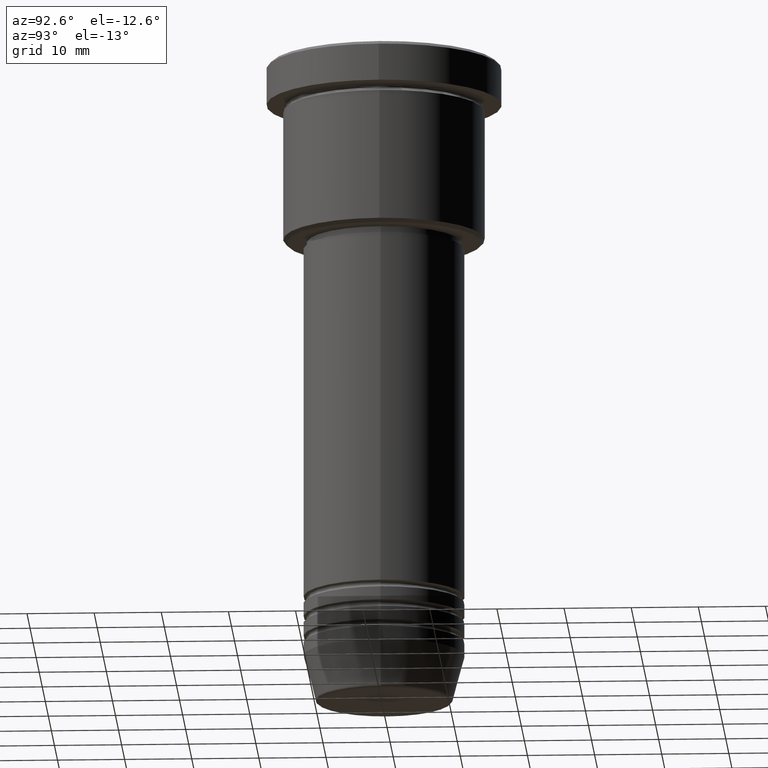
[diagram: clean part render]
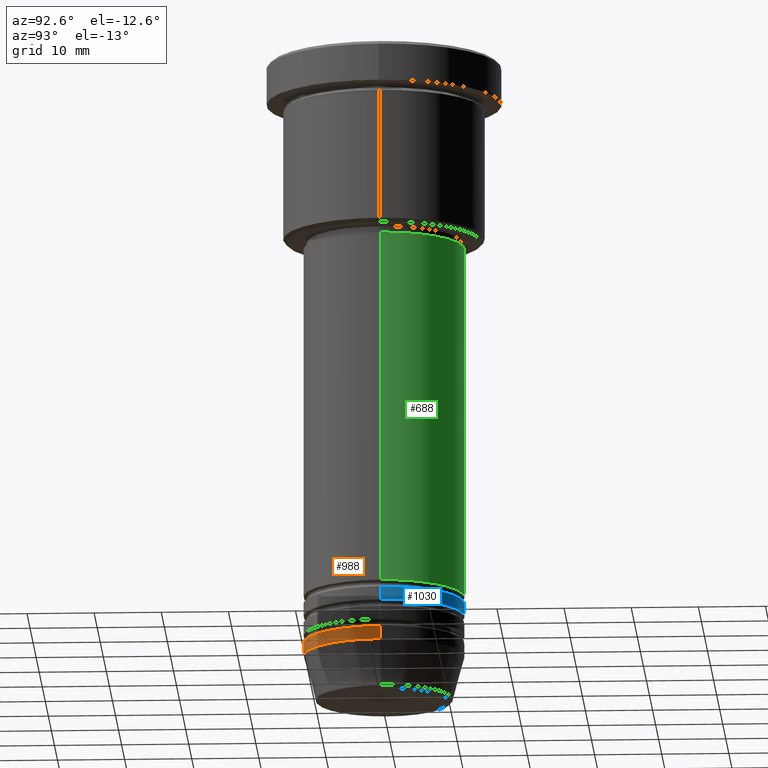
[diagram: same view with three faces highlighted in distinct colors, each labeled with its STEP entity id]
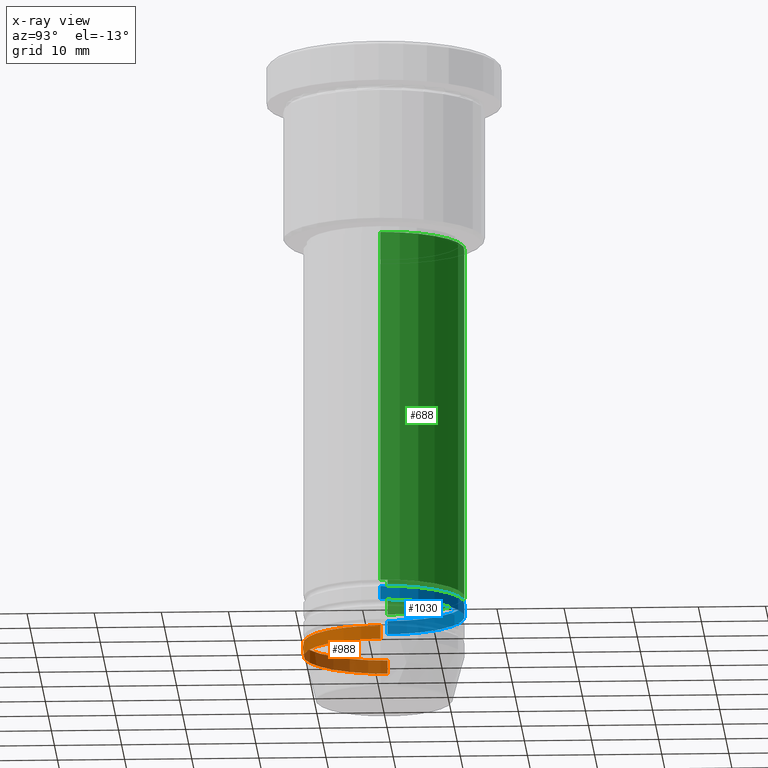
[diagram: x-ray of the same camera — body ghosted, the three highlighted faces saturated]
A machine part, auxiliary view with three faces highlighted in distinct colors.
The next image is the same camera in x-ray (body ghosted, the three faces saturated) — at least one of them is partly hidden behind the body in this view.
Their STEP definitions:

[orange] entity #988 — the highlighted cylindrical surface (partial cylindrical patch) has radius 12 mm, axis along (-0, -0, 1).
#2 = LINE ( 'NONE', #1011, #44 ) ;
#19 = ORIENTED_EDGE ( 'NONE', *, *, #136, .F. ) ;
#44 = VECTOR ( 'NONE', #461, 1000.000000000000000 ) ;
#94 = DIRECTION ( 'NONE',  ( -0.000000000000000000, -0.000000000000000000, 1.000000000000000000 ) ) ;
#129 = VERTEX_POINT ( 'NONE', #374 ) ;
#136 = EDGE_CURVE ( 'NONE', #129, #1086, #230, .T. ) ;
#206 = CARTESIAN_POINT ( 'NONE',  ( 12.00000000000000000, 0.000000000000000000, -88.00000000000000000 ) ) ;
#211 = VECTOR ( 'NONE', #94, 1000.000000000000000 ) ;
#230 = CIRCLE ( 'NONE', #1057, 12.00000000000000000 ) ;
#253 = AXIS2_PLACEMENT_3D ( 'NONE', #490, #917, #829 ) ;
#277 = CARTESIAN_POINT ( 'NONE',  ( 0.000000000000000000, 0.000000000000000000, -88.00000000000000000 ) ) ;
#358 = ORIENTED_EDGE ( 'NONE', *, *, #1092, .F. ) ;
#367 = CIRCLE ( 'NONE', #253, 12.00000000000000000 ) ;
#374 = CARTESIAN_POINT ( 'NONE',  ( -12.00000000000000000, 1.469576158976823947E-15, -88.00000000000000000 ) ) ;
#414 = CARTESIAN_POINT ( 'NONE',  ( -12.00000000000000000, 1.469576158976823947E-15, -90.00000000000000000 ) ) ;
#443 = EDGE_CURVE ( 'NONE', #533, #1086, #539, .T. ) ;
#461 = DIRECTION ( 'NONE',  ( -0.000000000000000000, -0.000000000000000000, 1.000000000000000000 ) ) ;
#465 = ORIENTED_EDGE ( 'NONE', *, *, #546, .T. ) ;
#490 = CARTESIAN_POINT ( 'NONE',  ( 0.000000000000000000, 0.000000000000000000, -90.00000000000000000 ) ) ;
#492 = DIRECTION ( 'NONE',  ( 1.000000000000000000, 0.000000000000000000, 0.000000000000000000 ) ) ;
#533 = VERTEX_POINT ( 'NONE', #577 ) ;
#539 = LINE ( 'NONE', #731, #211 ) ;
#546 = EDGE_CURVE ( 'NONE', #1164, #533, #367, .T. ) ;
#577 = CARTESIAN_POINT ( 'NONE',  ( 12.00000000000000000, 0.000000000000000000, -90.00000000000000000 ) ) ;
#731 = CARTESIAN_POINT ( 'NONE',  ( 12.00000000000000000, 0.000000000000000000, 0.000000000000000000 ) ) ;
#738 = CARTESIAN_POINT ( 'NONE',  ( 0.000000000000000000, 0.000000000000000000, 0.000000000000000000 ) ) ;
#758 = ORIENTED_EDGE ( 'NONE', *, *, #443, .T. ) ;
#759 = DIRECTION ( 'NONE',  ( -0.000000000000000000, -0.000000000000000000, 1.000000000000000000 ) ) ;
#829 = DIRECTION ( 'NONE',  ( 1.000000000000000000, 0.000000000000000000, 0.000000000000000000 ) ) ;
#836 = CYLINDRICAL_SURFACE ( 'NONE', #1041, 12.00000000000000000 ) ;
#917 = DIRECTION ( 'NONE',  ( -0.000000000000000000, -0.000000000000000000, 1.000000000000000000 ) ) ;
#988 = ADVANCED_FACE ( 'NONE', ( #1061 ), #836, .T. ) ;
#1002 = DIRECTION ( 'NONE',  ( -0.000000000000000000, -0.000000000000000000, 1.000000000000000000 ) ) ;
#1011 = CARTESIAN_POINT ( 'NONE',  ( -12.00000000000000000, 1.469576158976823947E-15, 0.000000000000000000 ) ) ;
#1041 = AXIS2_PLACEMENT_3D ( 'NONE', #738, #1002, #1094 ) ;
#1057 = AXIS2_PLACEMENT_3D ( 'NONE', #277, #759, #492 ) ;
#1061 = FACE_OUTER_BOUND ( 'NONE', #1178, .T. ) ;
#1086 = VERTEX_POINT ( 'NONE', #206 ) ;
#1092 = EDGE_CURVE ( 'NONE', #1164, #129, #2, .T. ) ;
#1094 = DIRECTION ( 'NONE',  ( 1.000000000000000000, 0.000000000000000000, 0.000000000000000000 ) ) ;
#1164 = VERTEX_POINT ( 'NONE', #414 ) ;
#1178 = EDGE_LOOP ( 'NONE', ( #358, #465, #758, #19 ) ) ;

[blue] entity #1030 — the highlighted cylindrical surface (partial cylindrical patch) has radius 12 mm, axis along (-0, -0, 1).
#49 = CIRCLE ( 'NONE', #426, 12.00000000000000000 ) ;
#73 = VERTEX_POINT ( 'NONE', #970 ) ;
#102 = FACE_OUTER_BOUND ( 'NONE', #1060, .T. ) ;
#169 = CARTESIAN_POINT ( 'NONE',  ( 0.000000000000000000, 0.000000000000000000, -81.99999999999997158 ) ) ;
#185 = DIRECTION ( 'NONE',  ( -0.000000000000000000, -0.000000000000000000, 1.000000000000000000 ) ) ;
#199 = VERTEX_POINT ( 'NONE', #571 ) ;
#205 = ORIENTED_EDGE ( 'NONE', *, *, #408, .T. ) ;
#223 = VERTEX_POINT ( 'NONE', #928 ) ;
#264 = DIRECTION ( 'NONE',  ( 1.000000000000000000, 0.000000000000000000, 0.000000000000000000 ) ) ;
#287 = VECTOR ( 'NONE', #991, 1000.000000000000000 ) ;
#366 = ORIENTED_EDGE ( 'NONE', *, *, #429, .F. ) ;
#389 = CARTESIAN_POINT ( 'NONE',  ( 0.000000000000000000, 0.000000000000000000, 0.000000000000000000 ) ) ;
#408 = EDGE_CURVE ( 'NONE', #223, #73, #924, .T. ) ;
#426 = AXIS2_PLACEMENT_3D ( 'NONE', #169, #1089, #264 ) ;
#429 = EDGE_CURVE ( 'NONE', #223, #881, #636, .T. ) ;
#468 = DIRECTION ( 'NONE',  ( -0.000000000000000000, -0.000000000000000000, 1.000000000000000000 ) ) ;
#479 = AXIS2_PLACEMENT_3D ( 'NONE', #389, #468, #1182 ) ;
#497 = LINE ( 'NONE', #1031, #661 ) ;
#516 = AXIS2_PLACEMENT_3D ( 'NONE', #639, #185, #1183 ) ;
#571 = CARTESIAN_POINT ( 'NONE',  ( -12.00000000000000000, 1.469576158976823947E-15, -81.99999999999997158 ) ) ;
#624 = ORIENTED_EDGE ( 'NONE', *, *, #934, .F. ) ;
#636 = LINE ( 'NONE', #911, #287 ) ;
#639 = CARTESIAN_POINT ( 'NONE',  ( 0.000000000000000000, 0.000000000000000000, -83.99999999999997158 ) ) ;
#661 = VECTOR ( 'NONE', #672, 1000.000000000000000 ) ;
#672 = DIRECTION ( 'NONE',  ( -0.000000000000000000, -0.000000000000000000, 1.000000000000000000 ) ) ;
#741 = CYLINDRICAL_SURFACE ( 'NONE', #479, 12.00000000000000000 ) ;
#881 = VERTEX_POINT ( 'NONE', #982 ) ;
#911 = CARTESIAN_POINT ( 'NONE',  ( 12.00000000000000000, 0.000000000000000000, 0.000000000000000000 ) ) ;
#924 = CIRCLE ( 'NONE', #516, 12.00000000000000000 ) ;
#928 = CARTESIAN_POINT ( 'NONE',  ( 12.00000000000000000, 0.000000000000000000, -83.99999999999997158 ) ) ;
#934 = EDGE_CURVE ( 'NONE', #881, #199, #49, .T. ) ;
#970 = CARTESIAN_POINT ( 'NONE',  ( -12.00000000000000000, 1.469576158976823947E-15, -83.99999999999997158 ) ) ;
#982 = CARTESIAN_POINT ( 'NONE',  ( 12.00000000000000000, 0.000000000000000000, -81.99999999999997158 ) ) ;
#991 = DIRECTION ( 'NONE',  ( -0.000000000000000000, -0.000000000000000000, 1.000000000000000000 ) ) ;
#1030 = ADVANCED_FACE ( 'NONE', ( #102 ), #741, .T. ) ;
#1031 = CARTESIAN_POINT ( 'NONE',  ( -12.00000000000000000, 1.469576158976823947E-15, 0.000000000000000000 ) ) ;
#1060 = EDGE_LOOP ( 'NONE', ( #205, #1155, #624, #366 ) ) ;
#1089 = DIRECTION ( 'NONE',  ( -0.000000000000000000, -0.000000000000000000, 1.000000000000000000 ) ) ;
#1122 = EDGE_CURVE ( 'NONE', #73, #199, #497, .T. ) ;
#1155 = ORIENTED_EDGE ( 'NONE', *, *, #1122, .T. ) ;
#1182 = DIRECTION ( 'NONE',  ( 1.000000000000000000, 0.000000000000000000, 0.000000000000000000 ) ) ;
#1183 = DIRECTION ( 'NONE',  ( 1.000000000000000000, 0.000000000000000000, 0.000000000000000000 ) ) ;

[green] entity #688 — the highlighted cylindrical surface (partial cylindrical patch) has radius 12 mm, axis along (-0, -0, 1).
#4 = VERTEX_POINT ( 'NONE', #200 ) ;
#16 = DIRECTION ( 'NONE',  ( 1.000000000000000000, 0.000000000000000000, 0.000000000000000000 ) ) ;
#32 = EDGE_LOOP ( 'NONE', ( #364, #806, #437, #632 ) ) ;
#76 = CARTESIAN_POINT ( 'NONE',  ( 12.00000000000000000, 0.000000000000000000, 0.000000000000000000 ) ) ;
#77 = VERTEX_POINT ( 'NONE', #597 ) ;
#103 = EDGE_CURVE ( 'NONE', #77, #1153, #1036, .T. ) ;
#118 = CARTESIAN_POINT ( 'NONE',  ( -12.00000000000000000, 1.469576158976823947E-15, -80.99999999999997158 ) ) ;
#151 = CYLINDRICAL_SURFACE ( 'NONE', #477, 12.00000000000000000 ) ;
#176 = VECTOR ( 'NONE', #525, 1000.000000000000000 ) ;
#195 = AXIS2_PLACEMENT_3D ( 'NONE', #840, #666, #387 ) ;
#200 = CARTESIAN_POINT ( 'NONE',  ( -12.00000000000000000, 1.469576158976823947E-15, -27.99999999999996803 ) ) ;
#325 = DIRECTION ( 'NONE',  ( 1.000000000000000000, 0.000000000000000000, 0.000000000000000000 ) ) ;
#364 = ORIENTED_EDGE ( 'NONE', *, *, #103, .T. ) ;
#387 = DIRECTION ( 'NONE',  ( 1.000000000000000000, 0.000000000000000000, 0.000000000000000000 ) ) ;
#412 = CARTESIAN_POINT ( 'NONE',  ( 0.000000000000000000, 0.000000000000000000, 0.000000000000000000 ) ) ;
#435 = DIRECTION ( 'NONE',  ( -0.000000000000000000, -0.000000000000000000, 1.000000000000000000 ) ) ;
#437 = ORIENTED_EDGE ( 'NONE', *, *, #1014, .F. ) ;
#477 = AXIS2_PLACEMENT_3D ( 'NONE', #412, #693, #325 ) ;
#525 = DIRECTION ( 'NONE',  ( -0.000000000000000000, -0.000000000000000000, 1.000000000000000000 ) ) ;
#532 = AXIS2_PLACEMENT_3D ( 'NONE', #838, #1088, #16 ) ;
#574 = CIRCLE ( 'NONE', #195, 12.00000000000000000 ) ;
#588 = FACE_OUTER_BOUND ( 'NONE', #32, .T. ) ;
#597 = CARTESIAN_POINT ( 'NONE',  ( 12.00000000000000000, 0.000000000000000000, -80.99999999999997158 ) ) ;
#625 = LINE ( 'NONE', #76, #649 ) ;
#632 = ORIENTED_EDGE ( 'NONE', *, *, #972, .F. ) ;
#649 = VECTOR ( 'NONE', #435, 1000.000000000000000 ) ;
#666 = DIRECTION ( 'NONE',  ( -0.000000000000000000, -0.000000000000000000, 1.000000000000000000 ) ) ;
#679 = VERTEX_POINT ( 'NONE', #837 ) ;
#688 = ADVANCED_FACE ( 'NONE', ( #588 ), #151, .T. ) ;
#693 = DIRECTION ( 'NONE',  ( -0.000000000000000000, -0.000000000000000000, 1.000000000000000000 ) ) ;
#713 = EDGE_CURVE ( 'NONE', #1153, #4, #1026, .T. ) ;
#806 = ORIENTED_EDGE ( 'NONE', *, *, #713, .T. ) ;
#837 = CARTESIAN_POINT ( 'NONE',  ( 12.00000000000000000, 0.000000000000000000, -27.99999999999996803 ) ) ;
#838 = CARTESIAN_POINT ( 'NONE',  ( 0.000000000000000000, 0.000000000000000000, -80.99999999999997158 ) ) ;
#840 = CARTESIAN_POINT ( 'NONE',  ( 0.000000000000000000, 0.000000000000000000, -27.99999999999996803 ) ) ;
#958 = CARTESIAN_POINT ( 'NONE',  ( -12.00000000000000000, 1.469576158976823947E-15, 0.000000000000000000 ) ) ;
#972 = EDGE_CURVE ( 'NONE', #77, #679, #625, .T. ) ;
#1014 = EDGE_CURVE ( 'NONE', #679, #4, #574, .T. ) ;
#1026 = LINE ( 'NONE', #958, #176 ) ;
#1036 = CIRCLE ( 'NONE', #532, 12.00000000000000000 ) ;
#1088 = DIRECTION ( 'NONE',  ( -0.000000000000000000, -0.000000000000000000, 1.000000000000000000 ) ) ;
#1153 = VERTEX_POINT ( 'NONE', #118 ) ;